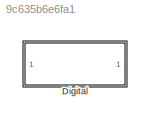
MODEL slx_9c635b6e6fa1
KIND library
CONFIG AbsTol = auto
CONFIG EnableMultiTasking = off
CONFIG FixedStep = auto
CONFIG MaxStep = auto
CONFIG MinStep = auto
CONFIG RelTol = 1e-3
CONFIG SampleTimeConstraint = Unconstrained
CONFIG Solver = VariableStepAuto
CONFIG SolverName = VariableStepAuto
CONFIG StartTime = 0.0
CONFIG StopTime = 10.0
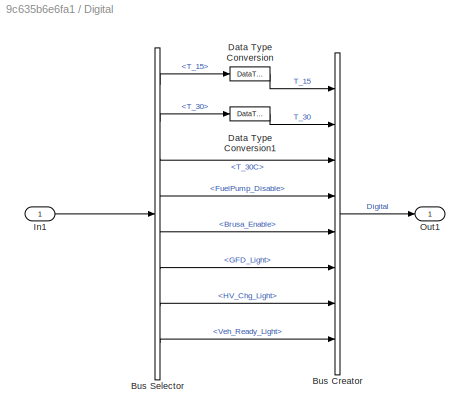
BLOCK [SubSystem] Digital
  Ports = [1, 1]
  RequestExecContextInheritance = off
  Variant = off
BLOCK [BusCreator] Digital/Bus Creator
  DisplayOption = bar
  InheritFromInputs = on
  Inputs = 8
  Ports = [8, 1]
BLOCK [BusSelector] Digital/Bus Selector
  OutputAsBus = off
  OutputSignals = BMS_Digital.T_15,BMS_Digital.T_30,BMS_Digital.T_30C,PUMP_Control.FuelPump_Disable,OBC_Digital.Brusa_Enable,Axiomatic_CAN.GFD_Light,Axiomatic_CAN.HV_Chg_Light,Axiomatic_CAN.Veh_Ready_Light
  Ports = [1, 8]
BLOCK [DataTypeConversion] Digital/Data Type Conversion
  RndMeth = Floor
  SaturateOnIntegerOverflow = off
BLOCK [DataTypeConversion] Digital/Data Type Conversion1
  RndMeth = Floor
  SaturateOnIntegerOverflow = off
BLOCK [Inport] Digital/In1
  IconDisplay = Port number
BLOCK [Outport] Digital/Out1
  IconDisplay = Port number
LINE Digital/Bus Creator:1 -> Digital/Out1:1
LINE Digital/Bus Selector:1 -> Digital/Data Type Conversion:1
LINE Digital/Bus Selector:2 -> Digital/Data Type Conversion1:1
LINE Digital/Bus Selector:3 -> Digital/Bus Creator:3
LINE Digital/Bus Selector:4 -> Digital/Bus Creator:4
LINE Digital/Bus Selector:5 -> Digital/Bus Creator:5
LINE Digital/Bus Selector:6 -> Digital/Bus Creator:6
LINE Digital/Bus Selector:7 -> Digital/Bus Creator:7
LINE Digital/Bus Selector:8 -> Digital/Bus Creator:8
LINE Digital/Data Type Conversion1:1 -> Digital/Bus Creator:2
LINE Digital/Data Type Conversion:1 -> Digital/Bus Creator:1
LINE Digital/In1:1 -> Digital/Bus Selector:1
